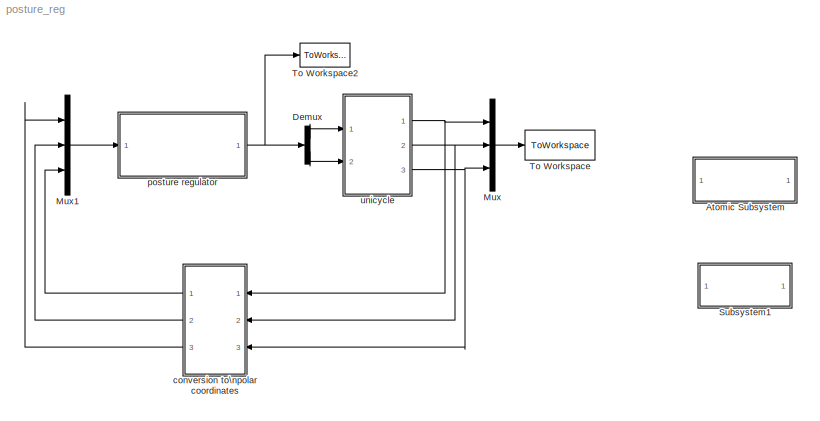
MODEL posture_reg
KIND model
BLOCK [SubSystem] Atomic Subsystem
  OpenFcn = init
  Ports = []
  RequestExecContextInheritance = off
  SID = 63
  TreatAsAtomicUnit = on
  Variant = off
BLOCK [Demux] Demux
  DisplayOption = bar
  Outputs = 2
  Ports = [1, 2]
  SID = 1
BLOCK [Mux] Mux
  DisplayOption = bar
  Inputs = 3
  Ports = [3, 1]
  SID = 3
BLOCK [Mux] Mux1
  DisplayOption = bar
  Inputs = 3
  Ports = [3, 1]
  SID = 4
BLOCK [SubSystem] Subsystem1
  OpenFcn = plots
  Ports = []
  RequestExecContextInheritance = off
  SID = 64
  ShowPortLabels = none
  Variant = off
BLOCK [ToWorkspace] To Workspace
  MaxDataPoints = inf
  Ports = [1]
  SID = 7
  SaveFormat = Structure With Time
  VariableName = configuration
BLOCK [ToWorkspace] To Workspace2
  MaxDataPoints = inf
  Ports = [1]
  SID = 8
  SaveFormat = Structure With Time
  VariableName = inputs
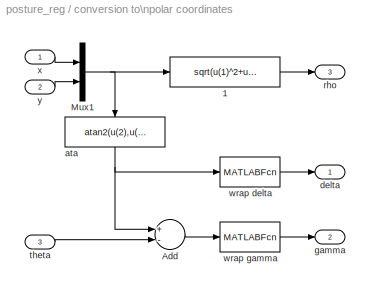
BLOCK [SubSystem] conversion to\npolar coordinates
  Ports = [3, 3]
  RequestExecContextInheritance = off
  SID = 9
  Variant = off
BLOCK [Fcn] conversion to\npolar coordinates/ 1
  Expr = sqrt(u(1)^2+u(2)^2)
  SID = 13
BLOCK [Sum] conversion to\npolar coordinates/Add
  InputSameDT = off
  Inputs = +-
  OutDataTypeStr = Inherit: Inherit via internal rule
  Ports = [2, 1]
  SID = 14
  SaturateOnIntegerOverflow = off
BLOCK [Mux] conversion to\npolar coordinates/Mux1
  DisplayOption = bar
  Inputs = 2
  Ports = [2, 1]
  SID = 15
BLOCK [Fcn] conversion to\npolar coordinates/ata
  Expr = atan2(u(2),u(1))+pi
  SID = 16
BLOCK [Outport] conversion to\npolar coordinates/delta
  IconDisplay = Port number
  SID = 19
BLOCK [Outport] conversion to\npolar coordinates/gamma
  IconDisplay = Port number
  Port = 2
  SID = 20
BLOCK [Outport] conversion to\npolar coordinates/rho
  IconDisplay = Port number
  Port = 3
  SID = 21
BLOCK [Inport] conversion to\npolar coordinates/theta
  IconDisplay = Port number
  Port = 3
  SID = 12
BLOCK [MATLABFcn] conversion to\npolar coordinates/wrap delta
  MATLABFcn = wrap(u)
  Ports = [1, 1]
  SID = 17
BLOCK [MATLABFcn] conversion to\npolar coordinates/wrap gamma
  MATLABFcn = wrap(u)
  Ports = [1, 1]
  SID = 18
BLOCK [Inport] conversion to\npolar coordinates/x
  IconDisplay = Port number
  SID = 10
BLOCK [Inport] conversion to\npolar coordinates/y
  IconDisplay = Port number
  Port = 2
  SID = 11
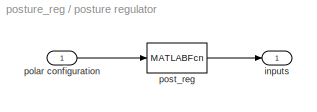
BLOCK [SubSystem] posture regulator
  Ports = [1, 1]
  RequestExecContextInheritance = off
  SID = 40
  Variant = off
BLOCK [Outport] posture regulator/inputs
  IconDisplay = Port number
  SID = 43
BLOCK [Inport] posture regulator/polar configuration
  IconDisplay = Port number
  SID = 41
BLOCK [MATLABFcn] posture regulator/post_reg
  Description = cartesian regulator
  MATLABFcn = post_reg(u)
  Output1D = off
  Ports = [1, 1]
  SID = 42
  Tag = {'prova'}
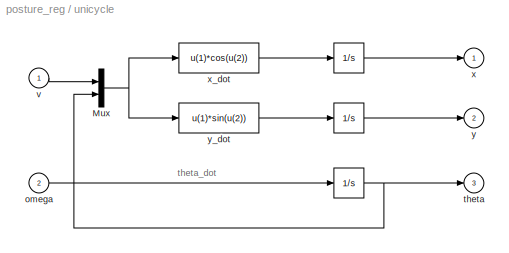
BLOCK [SubSystem] unicycle
  Ports = [2, 3]
  RequestExecContextInheritance = off
  SID = 44
  Variant = off
BLOCK [Integrator] unicycle/ 
  InitialCondition = theta_0
  Ports = [1, 1]
  SID = 47
BLOCK [Integrator] unicycle/   
  InitialCondition = x_0
  Ports = [1, 1]
  SID = 48
BLOCK [Integrator] unicycle/    
  InitialCondition = y_0
  Ports = [1, 1]
  SID = 49
BLOCK [Mux] unicycle/Mux
  DisplayOption = bar
  Inputs = 2
  Ports = [2, 1]
  SID = 50
BLOCK [Inport] unicycle/omega
  IconDisplay = Port number
  Port = 2
  SID = 46
BLOCK [Outport] unicycle/theta
  IconDisplay = Port number
  Port = 3
  SID = 55
BLOCK [Inport] unicycle/v
  IconDisplay = Port number
  SID = 45
BLOCK [Outport] unicycle/x
  IconDisplay = Port number
  SID = 53
BLOCK [Fcn] unicycle/x_dot
  Expr = u(1)*cos(u(2))
  SID = 51
BLOCK [Outport] unicycle/y
  IconDisplay = Port number
  Port = 2
  SID = 54
BLOCK [Fcn] unicycle/y_dot
  Expr = u(1)*sin(u(2))
  SID = 52
ANNOTATION unicycle: theta_dot
LINE Demux:1 -> unicycle:1
LINE Demux:2 -> unicycle:2
LINE Mux1:1 -> posture regulator:1
LINE Mux:1 -> To Workspace:1
LINE conversion to\npolar coordinates/ 1:1 -> conversion to\npolar coordinates/rho:1
LINE conversion to\npolar coordinates/Add:1 -> conversion to\npolar coordinates/wrap gamma:1
NET conversion to\npolar coordinates/Mux1:1 -> conversion to\npolar coordinates/ 1:1, conversion to\npolar coordinates/ata:1
NET conversion to\npolar coordinates/ata:1 -> conversion to\npolar coordinates/Add:1, conversion to\npolar coordinates/wrap delta:1
LINE conversion to\npolar coordinates/theta:1 -> conversion to\npolar coordinates/Add:2
LINE conversion to\npolar coordinates/wrap delta:1 -> conversion to\npolar coordinates/delta:1
LINE conversion to\npolar coordinates/wrap gamma:1 -> conversion to\npolar coordinates/gamma:1
LINE conversion to\npolar coordinates/x:1 -> conversion to\npolar coordinates/Mux1:1
LINE conversion to\npolar coordinates/y:1 -> conversion to\npolar coordinates/Mux1:2
LINE conversion to\npolar coordinates:1 -> Mux1:3
LINE conversion to\npolar coordinates:2 -> Mux1:2
LINE conversion to\npolar coordinates:3 -> Mux1:1
LINE posture regulator/polar configuration:1 -> posture regulator/post_reg:1
LINE posture regulator/post_reg:1 -> posture regulator/inputs:1
NET posture regulator:1 -> Demux:1, To Workspace2:1
LINE unicycle/    :1 -> unicycle/y:1
LINE unicycle/   :1 -> unicycle/x:1
NET unicycle/ :1 -> unicycle/Mux:2, unicycle/theta:1
NET unicycle/Mux:1 -> unicycle/x_dot:1, unicycle/y_dot:1
LINE unicycle/omega:1 -> unicycle/ :1
LINE unicycle/v:1 -> unicycle/Mux:1
LINE unicycle/x_dot:1 -> unicycle/   :1
LINE unicycle/y_dot:1 -> unicycle/    :1
NET unicycle:1 -> Mux:1, conversion to\npolar coordinates:1
NET unicycle:2 -> Mux:2, conversion to\npolar coordinates:2
NET unicycle:3 -> Mux:3, conversion to\npolar coordinates:3
note: NET lines group one-source signal fan-out (src -> all destinations, sorted); 1:1 wires keep LINE
